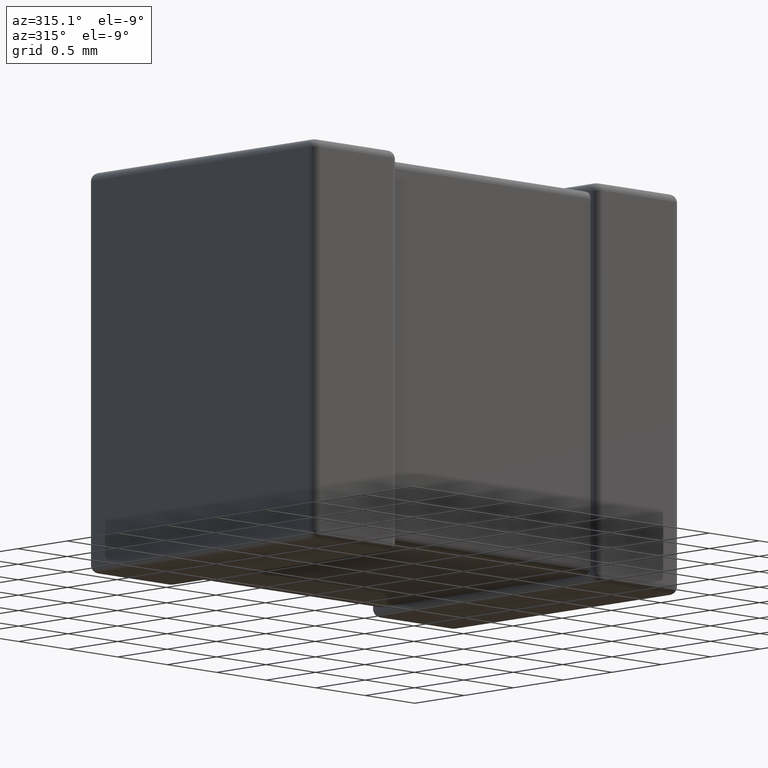
[diagram: clean part render]
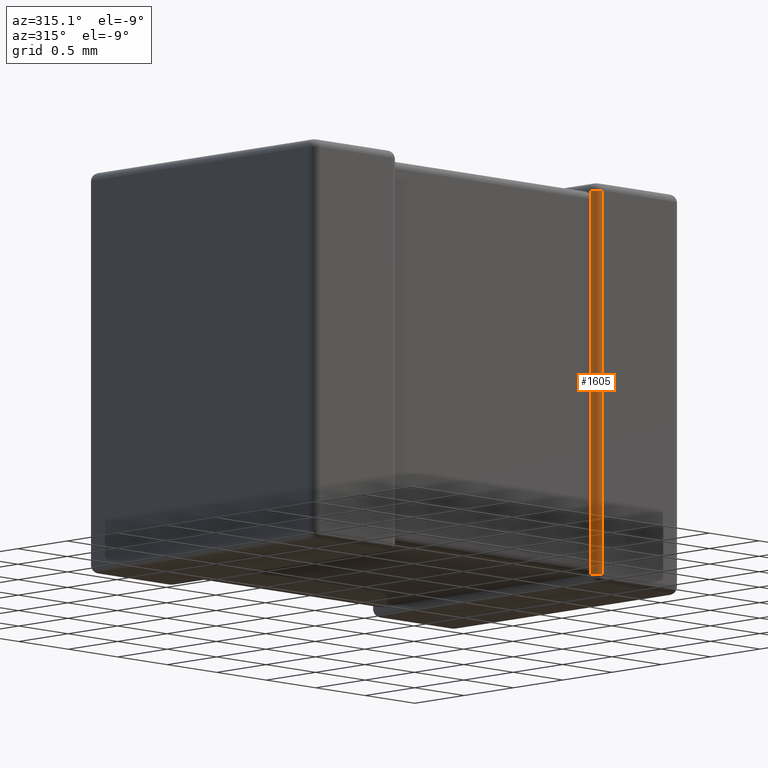
[diagram: same view with one face highlighted and labeled with its STEP entity id]
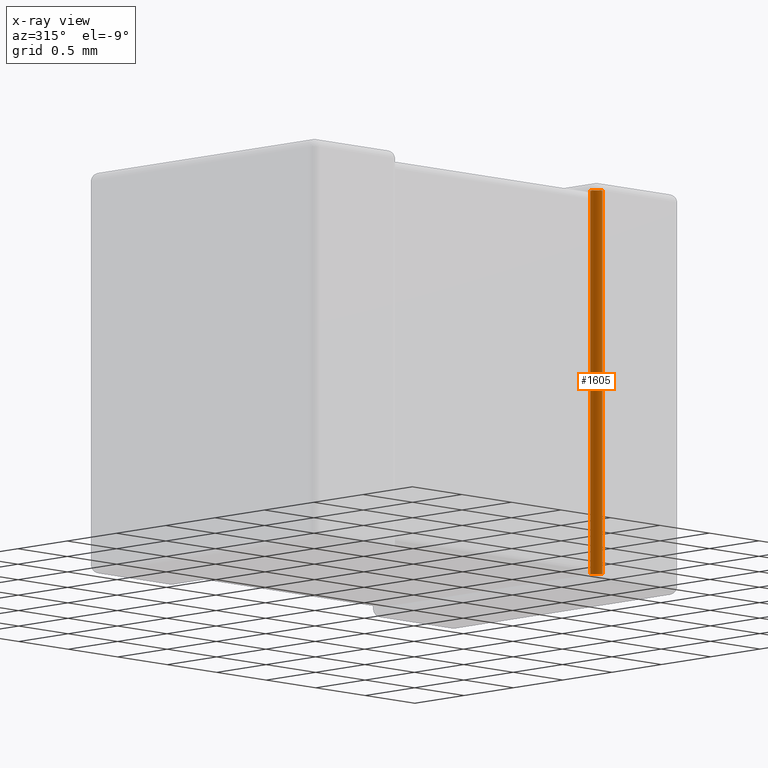
[diagram: x-ray of the same camera — body ghosted, the highlighted face saturated]
A machine part, auxiliary view. The second image highlights one B-rep face of the part: STEP entity #1605.
The next image is the same camera in x-ray: the body ghosted, the highlighted face saturated — about 0% of this face is hidden behind the body in this view.
In plain terms, the highlighted cylindrical surface (edge-blend (fillet) strip) has radius 0.0603 mm, axis along (0, 0, -1).
Its self-contained STEP definition (entity closure, byte-faithful):
#211 = DIRECTION ( 'NONE',  ( 0.0000000000000000000, -1.000000000000000000, -1.123385871690053500E-016 ) ) ;
#360 = CARTESIAN_POINT ( 'NONE',  ( 2.910319999999999600, 0.0000000000000000000, 0.0000000000000000000 ) ) ;
#374 = CARTESIAN_POINT ( 'NONE',  ( 2.849999999999999600, 0.06031999999999999900, 0.0000000000000000000 ) ) ;
#397 = DIRECTION ( 'NONE',  ( 0.0000000000000000000, 0.0000000000000000000, -1.000000000000000000 ) ) ;
#414 = LINE ( 'NONE', #360, #694 ) ;
#421 = LINE ( 'NONE', #2921, #865 ) ;
#446 = ORIENTED_EDGE ( 'NONE', *, *, #2863, .F. ) ;
#489 = CARTESIAN_POINT ( 'NONE',  ( 2.910319999999999600, 0.0000000000000000000, -0.06031999999999999900 ) ) ;
#582 = CARTESIAN_POINT ( 'NONE',  ( 2.910319999999999600, 0.06031999999999999900, -0.06031999999999999200 ) ) ;
#597 = EDGE_CURVE ( 'NONE', #3222, #3845, #1347, .T. ) ;
#598 = DIRECTION ( 'NONE',  ( 0.0000000000000000000, -1.123385871690053500E-016, 1.000000000000000000 ) ) ;
#694 = VECTOR ( 'NONE', #397, 1000.000000000000000 ) ;
#695 = CARTESIAN_POINT ( 'NONE',  ( 2.910319999999999600, 0.06031999999999999900, -2.839680000000000000 ) ) ;
#744 = DIRECTION ( 'NONE',  ( -0.0000000000000000000, -0.0000000000000000000, 1.000000000000000000 ) ) ;
#776 = VERTEX_POINT ( 'NONE', #1271 ) ;
#865 = VECTOR ( 'NONE', #744, 1000.000000000000000 ) ;
#889 = CYLINDRICAL_SURFACE ( 'NONE', #2054, 0.06031999999999999200 ) ;
#947 = FACE_OUTER_BOUND ( 'NONE', #4368, .T. ) ;
#965 = EDGE_CURVE ( 'NONE', #1025, #3845, #1357, .T. ) ;
#1025 = VERTEX_POINT ( 'NONE', #2501 ) ;
#1141 = DIRECTION ( 'NONE',  ( -1.000000000000000000, 0.0000000000000000000, 0.0000000000000000000 ) ) ;
#1210 = CARTESIAN_POINT ( 'NONE',  ( 2.849999999999999600, 0.06031999999999912400, -2.779359999999999600 ) ) ;
#1252 = VERTEX_POINT ( 'NONE', #4572 ) ;
#1271 = CARTESIAN_POINT ( 'NONE',  ( 2.849999999999999600, 0.06031999999999912400, -0.06031999999999999200 ) ) ;
#1280 = EDGE_CURVE ( 'NONE', #776, #3230, #3060, .T. ) ;
#1347 = LINE ( 'NONE', #374, #3665 ) ;
#1357 = CIRCLE ( 'NONE', #1717, 0.06031999999999999200 ) ;
#1605 = ADVANCED_FACE ( 'NONE', ( #947 ), #889, .T. ) ;
#1717 = AXIS2_PLACEMENT_3D ( 'NONE', #695, #3951, #4671 ) ;
#1771 = EDGE_CURVE ( 'NONE', #776, #1252, #4464, .T. ) ;
#1801 = AXIS2_PLACEMENT_3D ( 'NONE', #582, #598, #211 ) ;
#1819 = ORIENTED_EDGE ( 'NONE', *, *, #965, .F. ) ;
#2054 = AXIS2_PLACEMENT_3D ( 'NONE', #4398, #2623, #1141 ) ;
#2501 = CARTESIAN_POINT ( 'NONE',  ( 2.910319999999999600, 0.0000000000000000000, -2.839680000000000000 ) ) ;
#2623 = DIRECTION ( 'NONE',  ( 0.0000000000000000000, 0.0000000000000000000, -1.000000000000000000 ) ) ;
#2863 = EDGE_CURVE ( 'NONE', #3222, #1252, #421, .T. ) ;
#2921 = CARTESIAN_POINT ( 'NONE',  ( 2.849999999999999600, 0.06031999999999912400, -2.899999999999999900 ) ) ;
#3060 = CIRCLE ( 'NONE', #1801, 0.06031999999999999900 ) ;
#3112 = CARTESIAN_POINT ( 'NONE',  ( 2.849999999999999600, 0.06031999999999999900, 0.0000000000000000000 ) ) ;
#3222 = VERTEX_POINT ( 'NONE', #1210 ) ;
#3230 = VERTEX_POINT ( 'NONE', #489 ) ;
#3665 = VECTOR ( 'NONE', #3982, 1000.000000000000000 ) ;
#3830 = EDGE_CURVE ( 'NONE', #3230, #1025, #414, .T. ) ;
#3845 = VERTEX_POINT ( 'NONE', #3994 ) ;
#3951 = DIRECTION ( 'NONE',  ( -0.0000000000000000000, -0.0000000000000000000, -1.000000000000000000 ) ) ;
#3982 = DIRECTION ( 'NONE',  ( 0.0000000000000000000, 0.0000000000000000000, -1.000000000000000000 ) ) ;
#3994 = CARTESIAN_POINT ( 'NONE',  ( 2.849999999999999600, 0.06031999999999912400, -2.839680000000000000 ) ) ;
#4030 = ORIENTED_EDGE ( 'NONE', *, *, #3830, .F. ) ;
#4360 = VECTOR ( 'NONE', #4529, 1000.000000000000000 ) ;
#4368 = EDGE_LOOP ( 'NONE', ( #4542, #4650, #446, #4540, #1819, #4030 ) ) ;
#4398 = CARTESIAN_POINT ( 'NONE',  ( 2.910319999999999600, 0.06031999999999999900, 0.0000000000000000000 ) ) ;
#4464 = LINE ( 'NONE', #3112, #4360 ) ;
#4529 = DIRECTION ( 'NONE',  ( 0.0000000000000000000, 0.0000000000000000000, -1.000000000000000000 ) ) ;
#4540 = ORIENTED_EDGE ( 'NONE', *, *, #597, .T. ) ;
#4542 = ORIENTED_EDGE ( 'NONE', *, *, #1280, .F. ) ;
#4572 = CARTESIAN_POINT ( 'NONE',  ( 2.849999999999999600, 0.06031999999999912400, -0.1206399999999999800 ) ) ;
#4650 = ORIENTED_EDGE ( 'NONE', *, *, #1771, .T. ) ;
#4671 = DIRECTION ( 'NONE',  ( -1.000000000000000000, 0.0000000000000000000, 0.0000000000000000000 ) ) ;